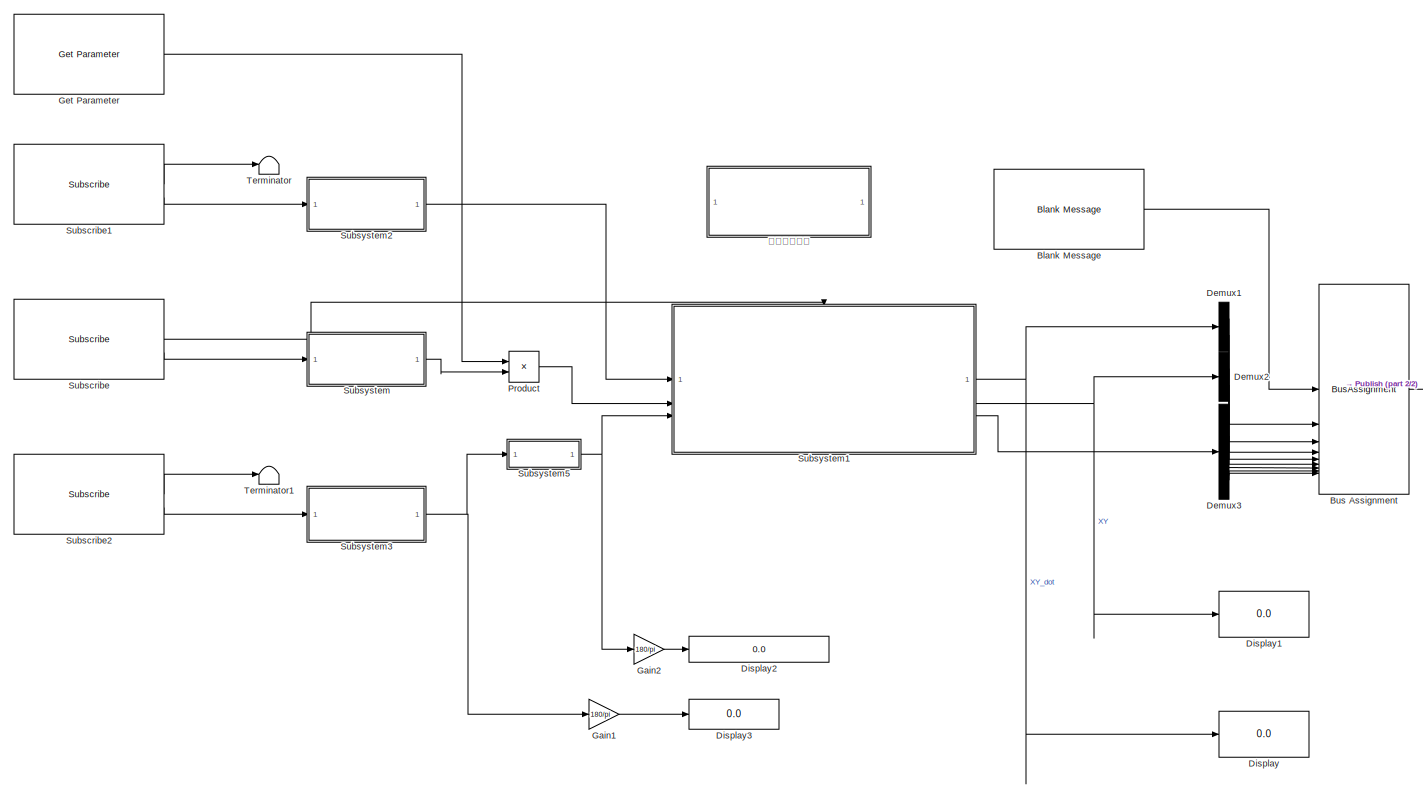
[diagram: root canvas - part 1/2, most of the canvas]
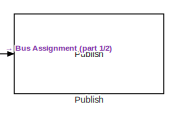
[diagram: root canvas - part 2/2, middle right region]
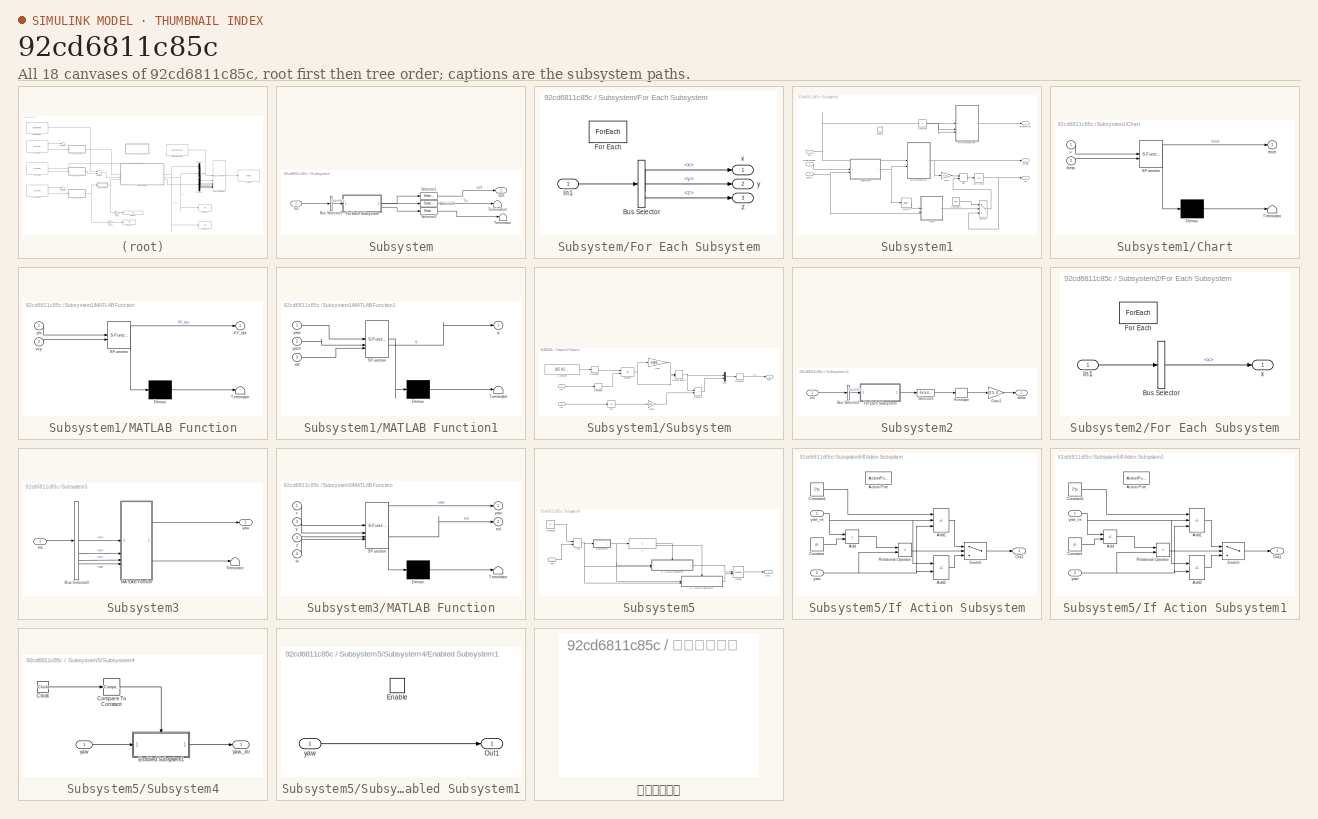
[diagram: thumbnail index - all 18 canvases of the model, root first then tree order]
MODEL slx_92cd6811c85c
KIND model
CONFIG AbsTol = auto
CONFIG EnableMultiTasking = off
CONFIG FixedStep = 0.01
CONFIG MaxStep = auto
CONFIG MinStep = auto
CONFIG RelTol = 1e-3
CONFIG SampleTimeConstraint = Unconstrained
CONFIG SolverName = FixedStepAuto
CONFIG StartTime = 0.0
CONFIG StopTime = inf
WORKSPACE source: mxarray member
WORKSPACE L = 0.492
WORKSPACE R = 0.347
WORKSPACE Tw = 0.34054
WORKSPACE b = 0.246
WORKSPACE k = 0.5
BLOCK [Reference] Blank Message  REF=ros2lib/Blank Message  (lib defined in slx_3c1549211f48)
  SourceBlock = ros2lib/Blank Message
  SourceType = ROS2 Blank Message
BLOCK [BusAssignment] Bus Assignment
  AssignedSignals = twist.twist.linear.x,twist.twist.linear.y,pose.pose.position.x,pose.pose.position.y,pose.pose.orientation.w,pose.pose.orientation.x,pose.pose.orientation.y,pose.pose.orientation.z
BLOCK [Demux] Demux1
  Outputs = 2
BLOCK [Demux] Demux2
  Outputs = 2
BLOCK [Demux] Demux3
BLOCK [Display] Display
  Decimation = 1
BLOCK [Display] Display1
  Decimation = 1
BLOCK [Display] Display2
  Commented = on
  Decimation = 1
  Format = long
BLOCK [Display] Display3
  Commented = on
  Decimation = 1
BLOCK [Gain] Gain1
  Commented = on
  Gain = 180/pi
BLOCK [Gain] Gain2
  Commented = on
  Gain = 180/pi
BLOCK [Reference] Get Parameter  REF=ros2lib/Get Parameter  (lib defined in slx_3c1549211f48)
  SourceBlock = ros2lib/Get Parameter
  SourceType = ros.slros2.internal.block.GetParameter
BLOCK [Product] Product
BLOCK [Reference] Publish  REF=ros2lib/Publish  (lib defined in slx_3c1549211f48)
  SourceBlock = ros2lib/Publish
  SourceType = ROS2 Publish
BLOCK [Reference] Subscribe  REF=ros2lib/Subscribe  (lib defined in slx_3c1549211f48)
  SourceBlock = ros2lib/Subscribe
  SourceType = ROS2 Subscribe
BLOCK [Reference] Subscribe1  REF=ros2lib/Subscribe  (lib defined in slx_3c1549211f48)
  SourceBlock = ros2lib/Subscribe
  SourceType = ROS2 Subscribe
BLOCK [Reference] Subscribe2  REF=ros2lib/Subscribe  (lib defined in slx_3c1549211f48)
  SourceBlock = ros2lib/Subscribe
  SourceType = ROS2 Subscribe
BLOCK [SubSystem] Subsystem
BLOCK [BusSelector] Subsystem/Bus Selector3
  OutputSignals = polygon.points
BLOCK [SubSystem] Subsystem/For Each Subsystem
  TreatAsAtomicUnit = on
BLOCK [BusSelector] Subsystem/For Each Subsystem/Bus Selector
  OutputSignals = x,y,z
BLOCK [ForEach] Subsystem/For Each Subsystem/For Each
  DisableCoverage = on
BLOCK [Inport] Subsystem/For Each Subsystem/In1
  Partition = on
  PartitionDimension = 1
  PartitionOffset = 0
  PartitionWidth = 1
BLOCK [Outport] Subsystem/For Each Subsystem/x
  ConcatenationDimension = 1
BLOCK [Outport] Subsystem/For Each Subsystem/y
  ConcatenationDimension = 1
  Port = 2
BLOCK [Outport] Subsystem/For Each Subsystem/z
  ConcatenationDimension = 1
  Port = 3
BLOCK [Inport] Subsystem/In1
BLOCK [Selector] Subsystem/Selector1
  IndexOptions = Index vector (dialog)
  Indices = [1:4]
  InputPortWidth = 16
  OutputSizes = 1
BLOCK [Selector] Subsystem/Selector2
  IndexOptions = Index vector (dialog)
  Indices = [1:4]
  InputPortWidth = 16
  OutputSizes = 1
BLOCK [Selector] Subsystem/Selector3
  IndexOptions = Index vector (dialog)
  Indices = [1:4]
  InputPortWidth = 16
  OutputSizes = 1
BLOCK [Terminator] Subsystem/Terminator
BLOCK [Terminator] Subsystem/Terminator1
BLOCK [Outport] Subsystem/spd
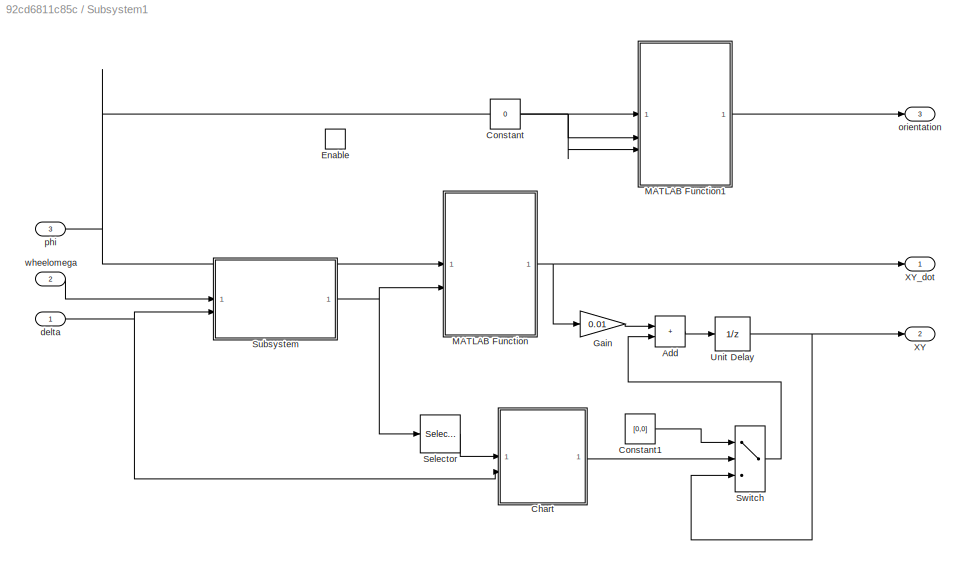
BLOCK [SubSystem] Subsystem1
BLOCK [Sum] Subsystem1/Add
  IconShape = rectangular
BLOCK [SubSystem] Subsystem1/Chart
  ErrorFcn = Stateflow.Translate.translate
  PermitHierarchicalResolution = ExplicitOnly
  SFBlockType = Chart
  TreatAsAtomicUnit = on
BLOCK [Demux] Subsystem1/Chart/ Demux 
  Outputs = 1
BLOCK [S-Function] Subsystem1/Chart/ SFunction 
  EnableBusSupport = on
  FunctionName = sf_sfun
  PortCounts = [2 2]
  SFcnIsStateOwnerBlock = off
  SFunctionDeploymentMode = off
  Tag = Stateflow S-Function 4
BLOCK [Terminator] Subsystem1/Chart/ Terminator 
BLOCK [Outport] Subsystem1/Chart/reset
BLOCK [Inport] Subsystem1/Chart/theta
  Port = 2
BLOCK [Inport] Subsystem1/Chart/v
BLOCK [Constant] Subsystem1/Constant
  Value = 0
BLOCK [Constant] Subsystem1/Constant1
  Value = [0,0]
BLOCK [EnablePort] Subsystem1/Enable
BLOCK [Gain] Subsystem1/Gain
  Gain = 0.01
BLOCK [SubSystem] Subsystem1/MATLAB Function
  ErrorFcn = Stateflow.Translate.translate
  LibrarySourceBlock = simulink/User-Defined\nFunctions/MATLAB Function
  PermitHierarchicalResolution = ExplicitOnly
  SFBlockType = MATLAB Function
  TreatAsAtomicUnit = on
BLOCK [Demux] Subsystem1/MATLAB Function/ Demux 
  Outputs = 1
BLOCK [S-Function] Subsystem1/MATLAB Function/ SFunction 
  EnableBusSupport = on
  FunctionName = sf_sfun
  PortCounts = [2 2]
  SFcnIsStateOwnerBlock = off
  SFunctionDeploymentMode = off
  Tag = Stateflow S-Function 2
BLOCK [Terminator] Subsystem1/MATLAB Function/ Terminator 
BLOCK [Outport] Subsystem1/MATLAB Function/XY_dot
BLOCK [Inport] Subsystem1/MATLAB Function/phi
BLOCK [Inport] Subsystem1/MATLAB Function/vxy
  Port = 2
BLOCK [SubSystem] Subsystem1/MATLAB Function1
  ErrorFcn = Stateflow.Translate.translate
  LibrarySourceBlock = simulink/User-Defined\nFunctions/MATLAB Function
  PermitHierarchicalResolution = ExplicitOnly
  SFBlockType = MATLAB Function
  TreatAsAtomicUnit = on
BLOCK [Demux] Subsystem1/MATLAB Function1/ Demux 
  Outputs = 1
BLOCK [S-Function] Subsystem1/MATLAB Function1/ SFunction 
  EnableBusSupport = on
  FunctionName = sf_sfun
  PortCounts = [3 2]
  SFcnIsStateOwnerBlock = off
  SFunctionDeploymentMode = off
  Tag = Stateflow S-Function 3
BLOCK [Terminator] Subsystem1/MATLAB Function1/ Terminator 
BLOCK [Inport] Subsystem1/MATLAB Function1/pitch
  Port = 2
BLOCK [Outport] Subsystem1/MATLAB Function1/q
BLOCK [Inport] Subsystem1/MATLAB Function1/roll
  Port = 3
BLOCK [Inport] Subsystem1/MATLAB Function1/yaw
BLOCK [Selector] Subsystem1/Selector
  IndexOptions = Index vector (dialog)
  Indices = [1]
  InputPortWidth = 2
  OutputSizes = 1
BLOCK [SubSystem] Subsystem1/Subsystem
BLOCK [Constant] Subsystem1/Subsystem/Constant
  Value = [k/2, k/2, 0.5-k/2, 0.5-k/2]
BLOCK [Gain] Subsystem1/Subsystem/Gain
  Gain = single(pi*R/30)
BLOCK [Gain] Subsystem1/Subsystem/Gain1
  Gain = single(b/L)
BLOCK [Inport] Subsystem1/Subsystem/In1
  PortDimensions = [4,1]
BLOCK [Inport] Subsystem1/Subsystem/In2
  Port = 2
BLOCK [ManualSwitch] Subsystem1/Subsystem/Manual Switch
  CurrentSetting = 0
BLOCK [Mux] Subsystem1/Subsystem/Mux
  DisplayOption = bar
  Inputs = 2
BLOCK [Product] Subsystem1/Subsystem/Product
  Multiplication = Matrix(*)
BLOCK [Product] Subsystem1/Subsystem/Product1
BLOCK [Reshape] Subsystem1/Subsystem/Reshape
  OutputDimensionality = Column vector (2-D)
BLOCK [Reshape] Subsystem1/Subsystem/Reshape1
  OutputDimensionality = Column vector (2-D)
BLOCK [Reshape] Subsystem1/Subsystem/Reshape2
  OutputDimensionality = Row vector (2-D)
BLOCK [Trigonometry] Subsystem1/Subsystem/Tan
  Operator = tan
BLOCK [Outport] Subsystem1/Subsystem/vxvy
BLOCK [Switch] Subsystem1/Switch
  Criteria = u2 > Threshold
  InputSameDT = off
  SaturateOnIntegerOverflow = off
BLOCK [UnitDelay] Subsystem1/Unit Delay
  HasFrameUpgradeWarning = on
  SampleTime = -1
BLOCK [Outport] Subsystem1/XY
  Port = 2
BLOCK [Outport] Subsystem1/XY_dot
BLOCK [Inport] Subsystem1/delta
BLOCK [Outport] Subsystem1/orientation
  Port = 3
BLOCK [Inport] Subsystem1/phi
  Port = 3
BLOCK [Inport] Subsystem1/wheelomega
  Port = 2
BLOCK [SubSystem] Subsystem2
BLOCK [BusSelector] Subsystem2/Bus Selector3
  OutputSignals = polygon.points
BLOCK [SubSystem] Subsystem2/For Each Subsystem
  TreatAsAtomicUnit = on
BLOCK [BusSelector] Subsystem2/For Each Subsystem/Bus Selector
  OutputSignals = x
BLOCK [ForEach] Subsystem2/For Each Subsystem/For Each
  DisableCoverage = on
BLOCK [Inport] Subsystem2/For Each Subsystem/In1
  Partition = on
  PartitionDimension = 1
  PartitionOffset = 0
  PartitionWidth = 1
BLOCK [Outport] Subsystem2/For Each Subsystem/x
  ConcatenationDimension = 1
BLOCK [Gain] Subsystem2/Gain1
  Gain = [0.5, 0.5]
  Multiplication = Matrix(K*u)
BLOCK [Inport] Subsystem2/In1
BLOCK [Reshape] Subsystem2/Reshape
  OutputDimensionality = Column vector (2-D)
BLOCK [Selector] Subsystem2/Selector3
  IndexOptions = Index vector (dialog)
  Indices = [1:2]
  InputPortWidth = 16
  OutputSizes = 1
BLOCK [Outport] Subsystem2/delta
BLOCK [SubSystem] Subsystem3
BLOCK [BusSelector] Subsystem3/Bus Selector3
  OutputSignals = orientation.x,orientation.y,orientation.z,orientation.w
BLOCK [Inport] Subsystem3/In1
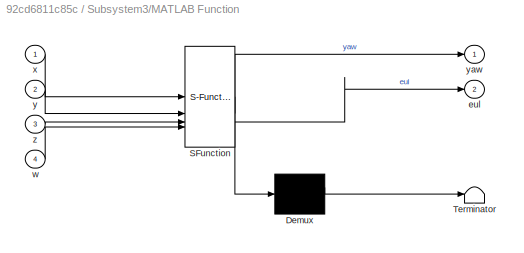
BLOCK [SubSystem] Subsystem3/MATLAB Function
  ErrorFcn = Stateflow.Translate.translate
  LibrarySourceBlock = simulink/User-Defined\nFunctions/MATLAB Function
  PermitHierarchicalResolution = ExplicitOnly
  SFBlockType = MATLAB Function
  TreatAsAtomicUnit = on
BLOCK [Demux] Subsystem3/MATLAB Function/ Demux 
  Outputs = 1
BLOCK [S-Function] Subsystem3/MATLAB Function/ SFunction 
  EnableBusSupport = on
  FunctionName = sf_sfun
  PortCounts = [4 3]
  SFcnIsStateOwnerBlock = off
  SFunctionDeploymentMode = off
  Tag = Stateflow S-Function 1
BLOCK [Terminator] Subsystem3/MATLAB Function/ Terminator 
BLOCK [Outport] Subsystem3/MATLAB Function/eul
  Port = 2
BLOCK [Inport] Subsystem3/MATLAB Function/w
  Port = 4
BLOCK [Inport] Subsystem3/MATLAB Function/x
BLOCK [Inport] Subsystem3/MATLAB Function/y
  Port = 2
BLOCK [Outport] Subsystem3/MATLAB Function/yaw
BLOCK [Inport] Subsystem3/MATLAB Function/z
  Port = 3
BLOCK [Terminator] Subsystem3/Terminator
BLOCK [Outport] Subsystem3/yaw
BLOCK [SubSystem] Subsystem5
BLOCK [Sum] Subsystem5/Add
  IconShape = rectangular
BLOCK [Constant] Subsystem5/Constant
  Value = pi
BLOCK [If] Subsystem5/If
  IfExpression = u1 <= pi
BLOCK [SubSystem] Subsystem5/If Action Subsystem
  TreatAsAtomicUnit = on
BLOCK [ActionPort] Subsystem5/If Action Subsystem/Action Port
  ActionPortLabel = if(u1 <= pi)
BLOCK [Sum] Subsystem5/If Action Subsystem/Add
  IconShape = rectangular
BLOCK [Sum] Subsystem5/If Action Subsystem/Add1
  IconShape = rectangular
  Inputs = --+
BLOCK [Sum] Subsystem5/If Action Subsystem/Add2
  IconShape = rectangular
  Inputs = -+
BLOCK [Constant] Subsystem5/If Action Subsystem/Constant
  Value = pi
BLOCK [Constant] Subsystem5/If Action Subsystem/Constant1
  Value = 2*pi
BLOCK [Outport] Subsystem5/If Action Subsystem/Out1
BLOCK [RelationalOperator] Subsystem5/If Action Subsystem/Relational Operator
  InputSameDT = off
  Operator = <
  OutDataTypeStr = boolean
  RndMeth = Simplest
BLOCK [Switch] Subsystem5/If Action Subsystem/Switch
  Criteria = u2 ~= 0
  InputSameDT = off
  SaturateOnIntegerOverflow = off
BLOCK [Inport] Subsystem5/If Action Subsystem/yaw
  Port = 2
BLOCK [Inport] Subsystem5/If Action Subsystem/yaw_ini
BLOCK [SubSystem] Subsystem5/If Action Subsystem1
  TreatAsAtomicUnit = on
BLOCK [ActionPort] Subsystem5/If Action Subsystem1/Action Port
  ActionPortLabel = else
BLOCK [Sum] Subsystem5/If Action Subsystem1/Add
  IconShape = rectangular
  Inputs = +-
BLOCK [Sum] Subsystem5/If Action Subsystem1/Add1
  IconShape = rectangular
  Inputs = +-+
BLOCK [Sum] Subsystem5/If Action Subsystem1/Add2
  IconShape = rectangular
  Inputs = -+
BLOCK [Constant] Subsystem5/If Action Subsystem1/Constant
  Value = pi
BLOCK [Constant] Subsystem5/If Action Subsystem1/Constant1
  Value = 2*pi
BLOCK [Outport] Subsystem5/If Action Subsystem1/Out1
BLOCK [RelationalOperator] Subsystem5/If Action Subsystem1/Relational Operator
  InputSameDT = off
  Operator = >
  OutDataTypeStr = boolean
  RndMeth = Simplest
BLOCK [Switch] Subsystem5/If Action Subsystem1/Switch
  Criteria = u2 ~= 0
  InputSameDT = off
  SaturateOnIntegerOverflow = off
BLOCK [Inport] Subsystem5/If Action Subsystem1/yaw
  Port = 2
BLOCK [Inport] Subsystem5/If Action Subsystem1/yaw_ini
BLOCK [Merge] Subsystem5/Merge
BLOCK [Outport] Subsystem5/Out1
BLOCK [SubSystem] Subsystem5/Subsystem4
BLOCK [Clock] Subsystem5/Subsystem4/Clock
  Decimation = 2
BLOCK [Reference] Subsystem5/Subsystem4/Compare To Constant  REF=simulink/Logic and Bit
Operations/Compare
To Constant
  SourceBlock = simulink/Logic and Bit\nOperations/Compare\nTo Constant
  SourceType = Compare To Constant
BLOCK [SubSystem] Subsystem5/Subsystem4/Enabled Subsystem1
  TreatAsAtomicUnit = on
BLOCK [EnablePort] Subsystem5/Subsystem4/Enabled Subsystem1/Enable
BLOCK [Outport] Subsystem5/Subsystem4/Enabled Subsystem1/Out1
BLOCK [Inport] Subsystem5/Subsystem4/Enabled Subsystem1/yaw
BLOCK [Inport] Subsystem5/Subsystem4/yaw
BLOCK [Outport] Subsystem5/Subsystem4/yaw_ini
BLOCK [Inport] Subsystem5/yaw
BLOCK [Terminator] Terminator
BLOCK [Terminator] Terminator1
BLOCK [SubSystem] 双击设置参数
LINE Blank Message:1 -> Bus Assignment:1
LINE Bus Assignment:1 -> Publish:1
LINE Demux1:1 -> Bus Assignment:2
LINE Demux1:2 -> Bus Assignment:3
LINE Demux2:1 -> Bus Assignment:4
LINE Demux2:2 -> Bus Assignment:5
LINE Demux3:1 -> Bus Assignment:6
LINE Demux3:2 -> Bus Assignment:7
LINE Demux3:3 -> Bus Assignment:8
LINE Demux3:4 -> Bus Assignment:9
LINE Gain1:1 -> Display3:1
LINE Gain2:1 -> Display2:1
LINE Get Parameter:1 -> Product:1
LINE Product:1 -> Subsystem1:2
LINE Subscribe1:1 -> Terminator:1
LINE Subscribe1:2 -> Subsystem2:1
LINE Subscribe2:1 -> Terminator1:1
LINE Subscribe2:2 -> Subsystem3:1
LINE Subscribe:1 -> Subsystem1:enable
LINE Subscribe:2 -> Subsystem:1
LINE Subsystem/Bus Selector3:1 -> Subsystem/For Each Subsystem:1
LINE Subsystem/For Each Subsystem/Bus Selector:1 -> Subsystem/For Each Subsystem/x:1
LINE Subsystem/For Each Subsystem/Bus Selector:2 -> Subsystem/For Each Subsystem/y:1
LINE Subsystem/For Each Subsystem/Bus Selector:3 -> Subsystem/For Each Subsystem/z:1
LINE Subsystem/For Each Subsystem/In1:1 -> Subsystem/For Each Subsystem/Bus Selector:1
LINE Subsystem/For Each Subsystem:1 -> Subsystem/Selector1:1
LINE Subsystem/For Each Subsystem:2 -> Subsystem/Selector2:1
LINE Subsystem/For Each Subsystem:3 -> Subsystem/Selector3:1
LINE Subsystem/In1:1 -> Subsystem/Bus Selector3:1
LINE Subsystem/Selector1:1 -> Subsystem/spd:1
LINE Subsystem/Selector2:1 -> Subsystem/Terminator1:1
LINE Subsystem/Selector3:1 -> Subsystem/Terminator:1
LINE Subsystem1/Add:1 -> Subsystem1/Unit Delay:1
LINE Subsystem1/Chart:1 -> Subsystem1/Switch:2
LINE Subsystem1/Constant1:1 -> Subsystem1/Switch:1
NET Subsystem1/Constant:1 -> Subsystem1/MATLAB Function1:2, Subsystem1/MATLAB Function1:3
LINE Subsystem1/Gain:1 -> Subsystem1/Add:1
LINE Subsystem1/MATLAB Function1:1 -> Subsystem1/orientation:1
NET Subsystem1/MATLAB Function:1 -> Subsystem1/Gain:1, Subsystem1/XY_dot:1
LINE Subsystem1/Selector:1 -> Subsystem1/Chart:1
LINE Subsystem1/Subsystem/Constant:1 -> Subsystem1/Subsystem/Reshape2:1
LINE Subsystem1/Subsystem/Gain1:1 -> Subsystem1/Subsystem/Product1:2
LINE Subsystem1/Subsystem/Gain:1 -> Subsystem1/Subsystem/Manual Switch:1
LINE Subsystem1/Subsystem/In1:1 -> Subsystem1/Subsystem/Reshape:1
LINE Subsystem1/Subsystem/In2:1 -> Subsystem1/Subsystem/Tan:1
NET Subsystem1/Subsystem/Manual Switch:1 -> Subsystem1/Subsystem/Mux:1, Subsystem1/Subsystem/Product1:1
LINE Subsystem1/Subsystem/Mux:1 -> Subsystem1/Subsystem/Reshape1:1
LINE Subsystem1/Subsystem/Product1:1 -> Subsystem1/Subsystem/Mux:2
NET Subsystem1/Subsystem/Product:1 -> Subsystem1/Subsystem/Gain:1, Subsystem1/Subsystem/Manual Switch:2
LINE Subsystem1/Subsystem/Reshape1:1 -> Subsystem1/Subsystem/vxvy:1
LINE Subsystem1/Subsystem/Reshape2:1 -> Subsystem1/Subsystem/Product:1
LINE Subsystem1/Subsystem/Reshape:1 -> Subsystem1/Subsystem/Product:2
LINE Subsystem1/Subsystem/Tan:1 -> Subsystem1/Subsystem/Gain1:1
NET Subsystem1/Subsystem:1 -> Subsystem1/MATLAB Function:2, Subsystem1/Selector:1
LINE Subsystem1/Switch:1 -> Subsystem1/Add:2
NET Subsystem1/Unit Delay:1 -> Subsystem1/Switch:3, Subsystem1/XY:1
NET Subsystem1/delta:1 -> Subsystem1/Chart:2, Subsystem1/Subsystem:2
NET Subsystem1/phi:1 -> Subsystem1/MATLAB Function1:1, Subsystem1/MATLAB Function:1
LINE Subsystem1/wheelomega:1 -> Subsystem1/Subsystem:1
NET Subsystem1:1 -> Demux1:1, Display:1
NET Subsystem1:2 -> Demux2:1, Display1:1
LINE Subsystem1:3 -> Demux3:1
LINE Subsystem2/Bus Selector3:1 -> Subsystem2/For Each Subsystem:1
LINE Subsystem2/For Each Subsystem/Bus Selector:1 -> Subsystem2/For Each Subsystem/x:1
LINE Subsystem2/For Each Subsystem/In1:1 -> Subsystem2/For Each Subsystem/Bus Selector:1
LINE Subsystem2/For Each Subsystem:1 -> Subsystem2/Selector3:1
LINE Subsystem2/Gain1:1 -> Subsystem2/delta:1
LINE Subsystem2/In1:1 -> Subsystem2/Bus Selector3:1
LINE Subsystem2/Reshape:1 -> Subsystem2/Gain1:1
LINE Subsystem2/Selector3:1 -> Subsystem2/Reshape:1
LINE Subsystem2:1 -> Subsystem1:1
LINE Subsystem3/Bus Selector3:1 -> Subsystem3/MATLAB Function:1
LINE Subsystem3/Bus Selector3:2 -> Subsystem3/MATLAB Function:2
LINE Subsystem3/Bus Selector3:3 -> Subsystem3/MATLAB Function:3
LINE Subsystem3/Bus Selector3:4 -> Subsystem3/MATLAB Function:4
LINE Subsystem3/In1:1 -> Subsystem3/Bus Selector3:1
LINE Subsystem3/MATLAB Function:1 -> Subsystem3/yaw:1
LINE Subsystem3/MATLAB Function:2 -> Subsystem3/Terminator:1
NET Subsystem3:1 -> Gain1:1, Subsystem5:1
NET Subsystem5/Add:1 -> Subsystem5/If Action Subsystem1:2, Subsystem5/If Action Subsystem:2, Subsystem5/Subsystem4:1
LINE Subsystem5/Constant:1 -> Subsystem5/Add:1
LINE Subsystem5/If Action Subsystem/Add1:1 -> Subsystem5/If Action Subsystem/Switch:1
LINE Subsystem5/If Action Subsystem/Add2:1 -> Subsystem5/If Action Subsystem/Switch:3
LINE Subsystem5/If Action Subsystem/Add:1 -> Subsystem5/If Action Subsystem/Relational Operator:1
LINE Subsystem5/If Action Subsystem/Constant1:1 -> Subsystem5/If Action Subsystem/Add1:1
LINE Subsystem5/If Action Subsystem/Constant:1 -> Subsystem5/If Action Subsystem/Add:2
LINE Subsystem5/If Action Subsystem/Relational Operator:1 -> Subsystem5/If Action Subsystem/Switch:2
LINE Subsystem5/If Action Subsystem/Switch:1 -> Subsystem5/If Action Subsystem/Out1:1
NET Subsystem5/If Action Subsystem/yaw:1 -> Subsystem5/If Action Subsystem/Add1:3, Subsystem5/If Action Subsystem/Add2:2, Subsystem5/If Action Subsystem/Relational Operator:2
NET Subsystem5/If Action Subsystem/yaw_ini:1 -> Subsystem5/If Action Subsystem/Add1:2, Subsystem5/If Action Subsystem/Add2:1, Subsystem5/If Action Subsystem/Add:1
LINE Subsystem5/If Action Subsystem1/Add1:1 -> Subsystem5/If Action Subsystem1/Switch:1
LINE Subsystem5/If Action Subsystem1/Add2:1 -> Subsystem5/If Action Subsystem1/Switch:3
LINE Subsystem5/If Action Subsystem1/Add:1 -> Subsystem5/If Action Subsystem1/Relational Operator:1
LINE Subsystem5/If Action Subsystem1/Constant1:1 -> Subsystem5/If Action Subsystem1/Add1:1
LINE Subsystem5/If Action Subsystem1/Constant:1 -> Subsystem5/If Action Subsystem1/Add:2
LINE Subsystem5/If Action Subsystem1/Relational Operator:1 -> Subsystem5/If Action Subsystem1/Switch:2
LINE Subsystem5/If Action Subsystem1/Switch:1 -> Subsystem5/If Action Subsystem1/Out1:1
NET Subsystem5/If Action Subsystem1/yaw:1 -> Subsystem5/If Action Subsystem1/Add1:3, Subsystem5/If Action Subsystem1/Add2:2, Subsystem5/If Action Subsystem1/Relational Operator:2
NET Subsystem5/If Action Subsystem1/yaw_ini:1 -> Subsystem5/If Action Subsystem1/Add1:2, Subsystem5/If Action Subsystem1/Add2:1, Subsystem5/If Action Subsystem1/Add:1
LINE Subsystem5/If Action Subsystem1:1 -> Subsystem5/Merge:2
LINE Subsystem5/If Action Subsystem:1 -> Subsystem5/Merge:1
LINE Subsystem5/If:1 -> Subsystem5/If Action Subsystem:ifaction
LINE Subsystem5/If:2 -> Subsystem5/If Action Subsystem1:ifaction
LINE Subsystem5/Merge:1 -> Subsystem5/Out1:1
LINE Subsystem5/Subsystem4/Clock:1 -> Subsystem5/Subsystem4/Compare To Constant:1
LINE Subsystem5/Subsystem4/Compare To Constant:1 -> Subsystem5/Subsystem4/Enabled Subsystem1:enable
LINE Subsystem5/Subsystem4/Enabled Subsystem1/yaw:1 -> Subsystem5/Subsystem4/Enabled Subsystem1/Out1:1
LINE Subsystem5/Subsystem4/Enabled Subsystem1:1 -> Subsystem5/Subsystem4/yaw_ini:1
LINE Subsystem5/Subsystem4/yaw:1 -> Subsystem5/Subsystem4/Enabled Subsystem1:1
NET Subsystem5/Subsystem4:1 -> Subsystem5/If Action Subsystem1:1, Subsystem5/If Action Subsystem:1, Subsystem5/If:1
LINE Subsystem5/yaw:1 -> Subsystem5/Add:2
NET Subsystem5:1 -> Gain2:1, Subsystem1:3
LINE Subsystem:1 -> Product:2
note: NET lines group one-source signal fan-out (src -> all destinations, sorted); 1:1 wires keep LINE
CHART Subsystem3/MATLAB Function states=1 transitions=1
  STATE_LABEL 'eML_blk_kernel()'
  STATE_LABEL 'SCRIPT:\nfunction [yaw, eul] = fcn(x, y, z, w)\n\nyaw = atan2(2*(w*z+x*y),1-2*(y^2+z^2));\n% roll = atan2(2*(w*x+y*z),1-2*(x^2+y^2));\n% pitch = asin(2*(w*y-z*x));\n% q = [x, y, z, w];\n% eul = quat2eul(q);% w,x,y,z\neul = 0;\n'
CHART Subsystem1/MATLAB Function states=1 transitions=1
  STATE_LABEL 'eML_blk_kernel()'
  STATE_LABEL 'SCRIPT:\nfunction XY_dot = fcn(phi, vxy)\n\nR = [cos(phi),-sin(phi);sin(phi),cos(phi)];\nXY_dot = R*vxy;\n'
CHART Subsystem1/MATLAB Function1 states=1 transitions=1
  STATE_LABEL 'eML_blk_kernel()'
  STATE_LABEL 'SCRIPT:\nfunction q = fcn(yaw, pitch, roll)\n\nq = eul2quat([yaw,pitch,roll]);\n'
CHART Subsystem1/Chart states=4 transitions=8
  STATE_LABEL 'hold\nen,du:\nreset = false;'
  STATE_LABEL 'clearXY\nen:\nreset = true;\ndelay = int16(5);\ndu:\ndelay = delay-int16(1);\n'
  STATE_LABEL 'waiting'
  STATE_LABEL 'waiting1'
CHART  states=0 transitions=0
CHART  states=0 transitions=0
CHART  states=0 transitions=0
CHART  states=0 transitions=0
